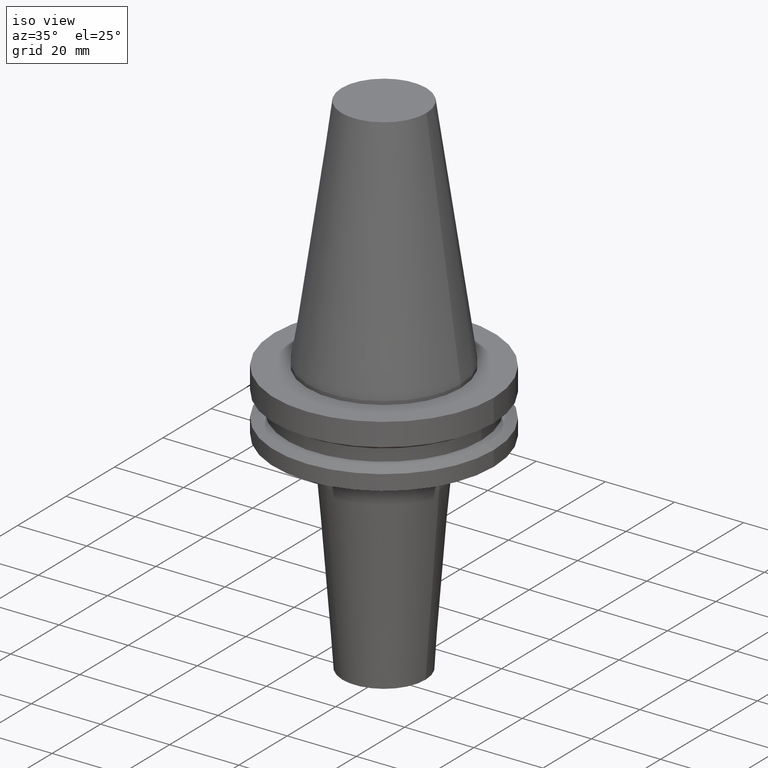
[diagram: clean part render]
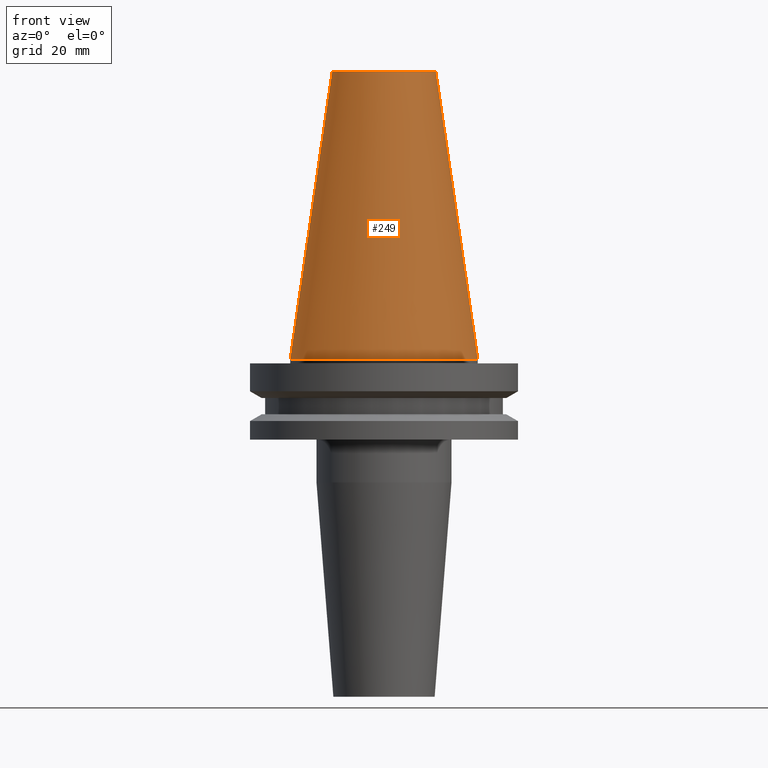
[diagram: tour spotlight — one face highlighted and labeled with its STEP entity id]
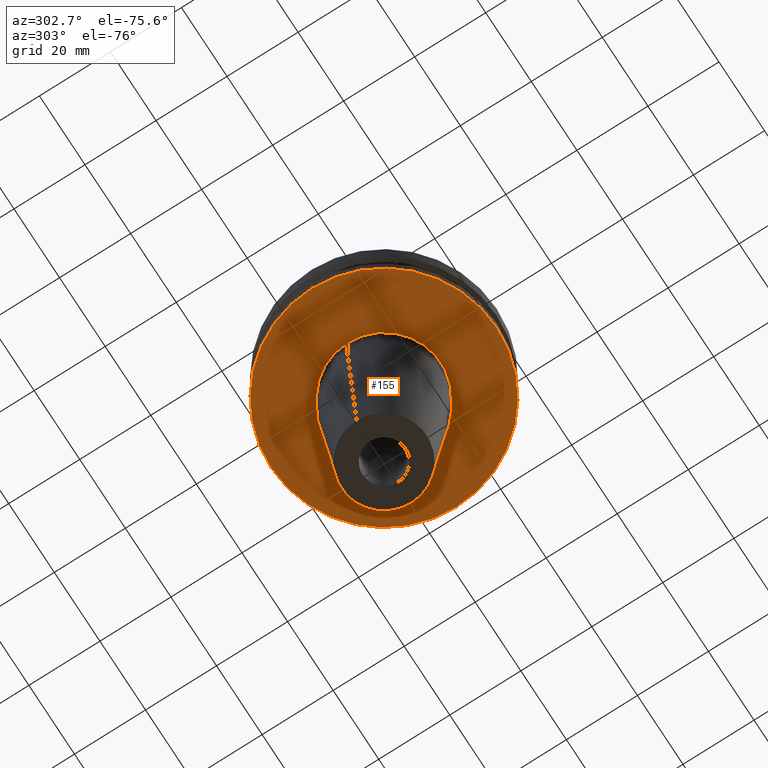
[diagram: tour spotlight — one face highlighted and labeled with its STEP entity id]
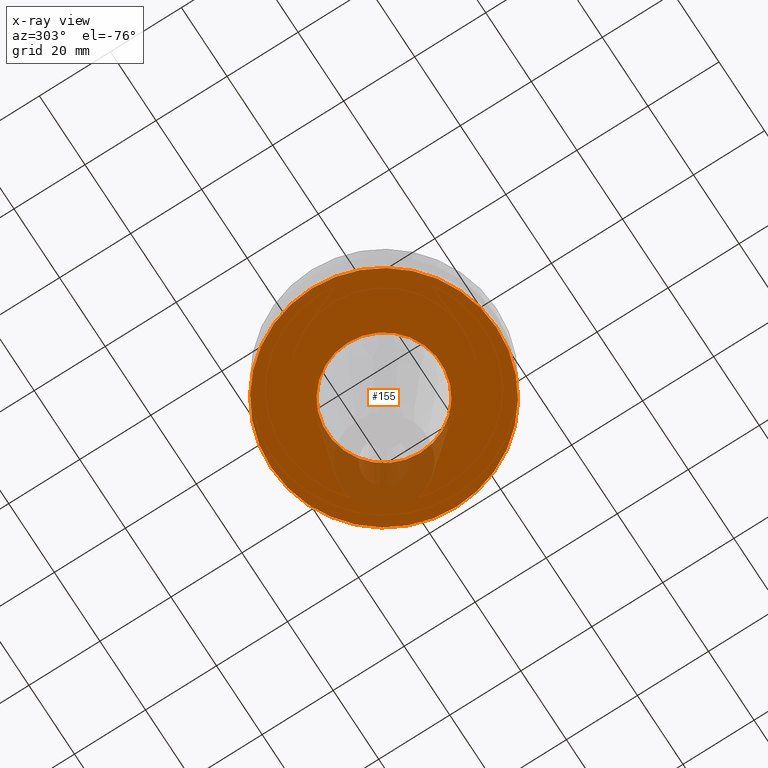
[diagram: x-ray of the same camera — body ghosted, this tour face saturated]
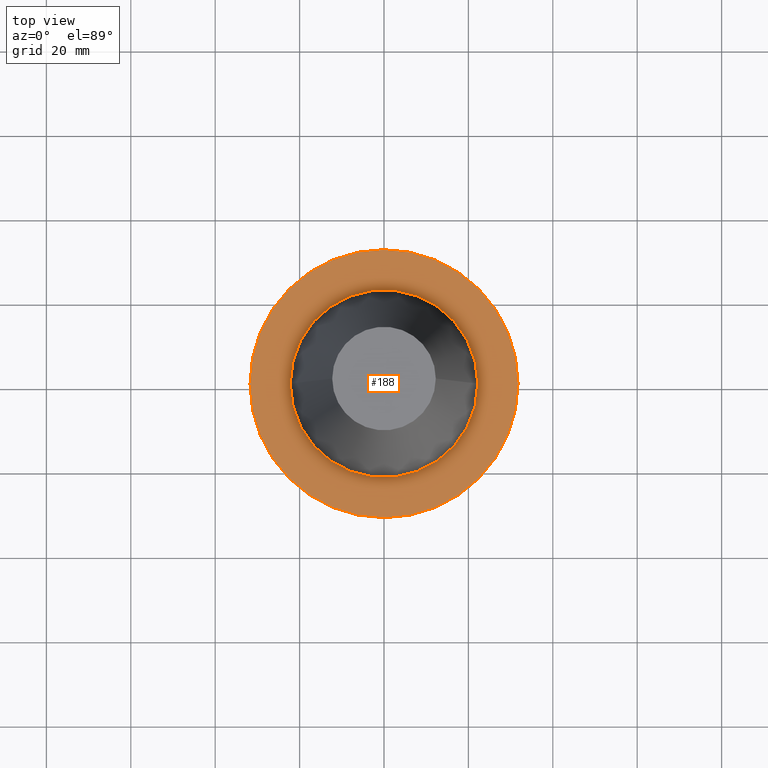
[diagram: tour spotlight — one face highlighted and labeled with its STEP entity id]
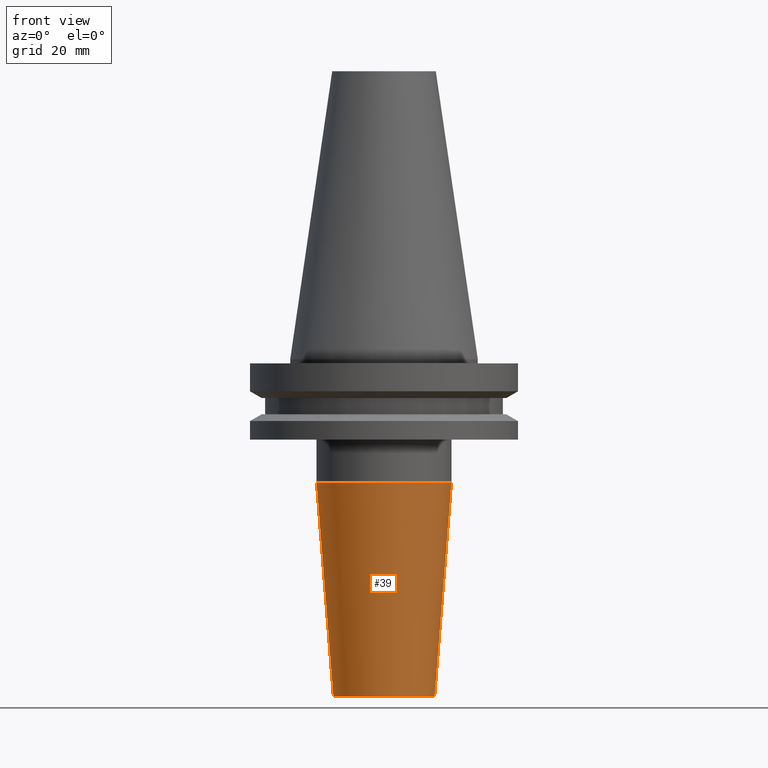
[diagram: tour spotlight — one face highlighted and labeled with its STEP entity id]
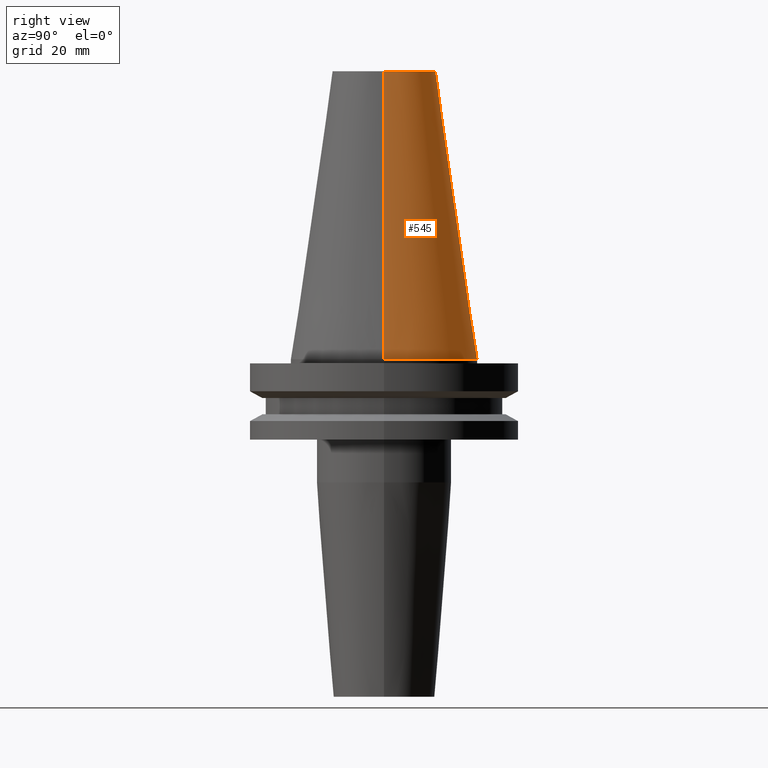
[diagram: tour spotlight — one face highlighted and labeled with its STEP entity id]
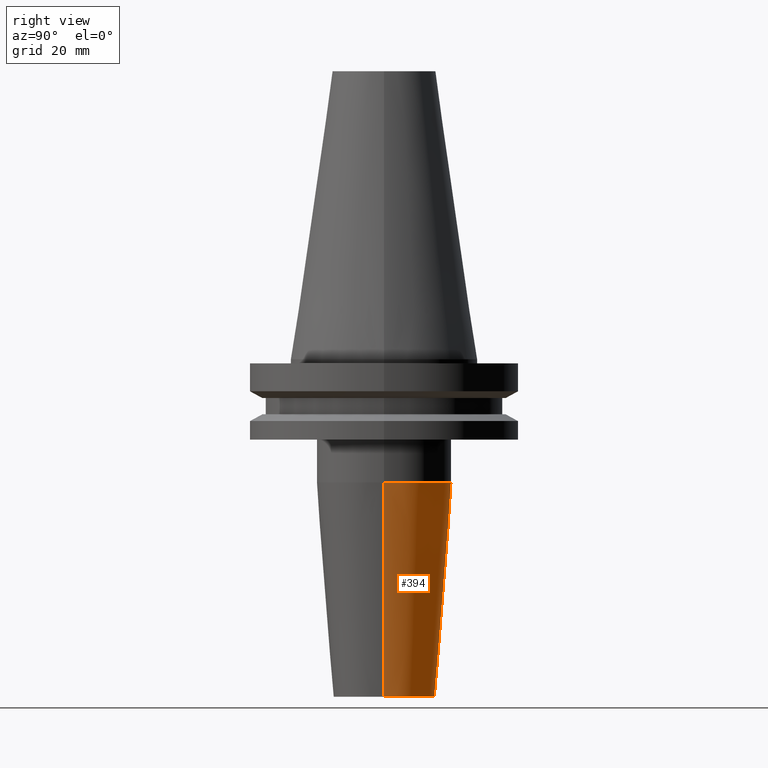
[diagram: tour spotlight — one face highlighted and labeled with its STEP entity id]
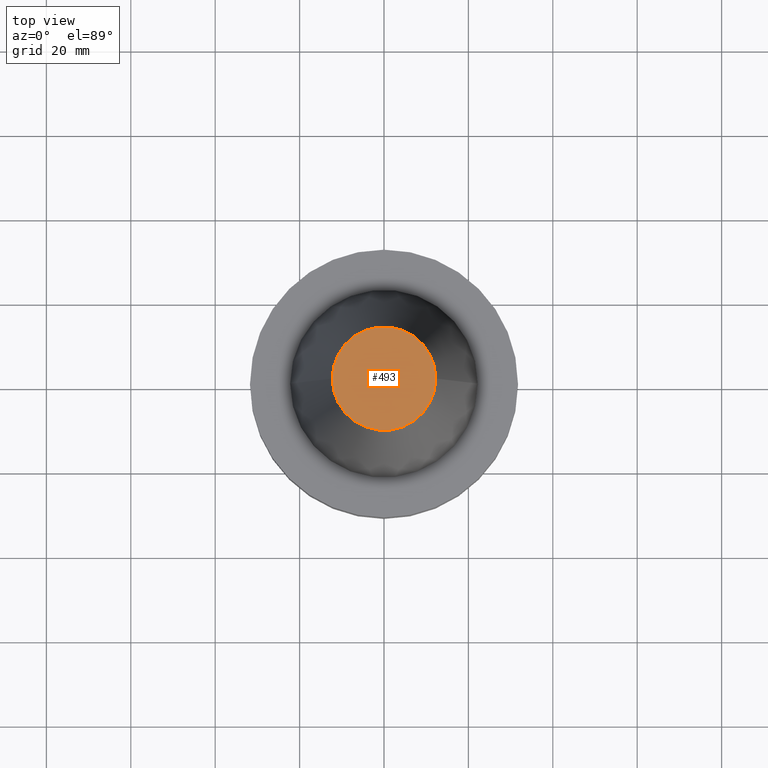
[diagram: tour spotlight — one face highlighted and labeled with its STEP entity id]
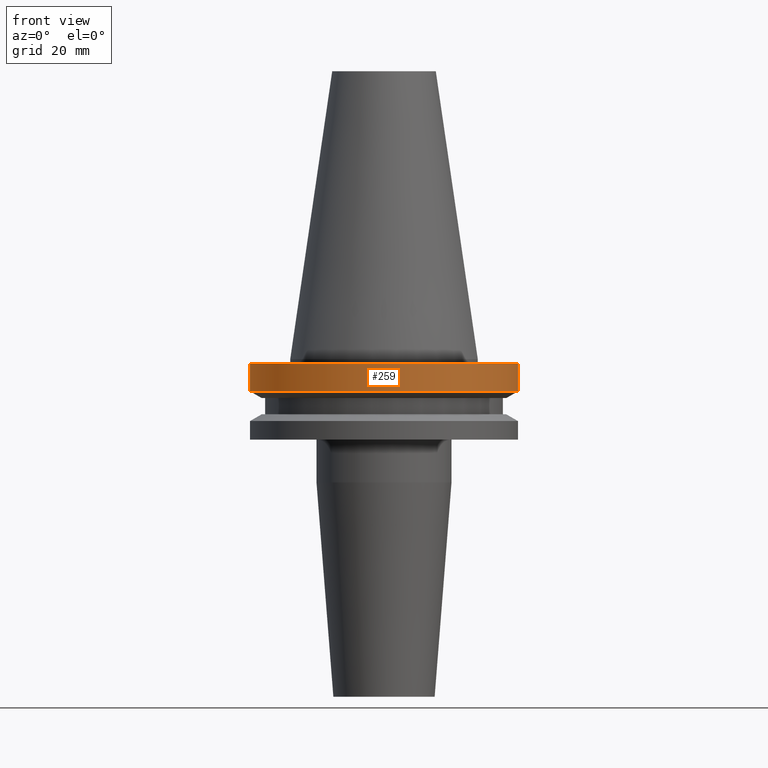
[diagram: tour spotlight — one face highlighted and labeled with its STEP entity id]
A machine part: a face-by-face anatomy tour. The part has 27 B-rep faces; the first image is the clean iso view, then the 8 largest visible faces are spotlighted one at a time (largest first), each with its STEP entity span.

Face 1 — front view, entity #249. In plain terms, the highlighted conical surface has half-angle 8.297 deg.
Definition (entity closure, byte-faithful):
#5 = CARTESIAN_POINT ( 'NONE',  ( -12.27178102086201150, 0.000000000000000000, 68.25000000000000000 ) ) ;
#14 = VERTEX_POINT ( 'NONE', #85 ) ;
#31 = EDGE_LOOP ( 'NONE', ( #127, #89, #602, #324 ) ) ;
#41 = CARTESIAN_POINT ( 'NONE',  ( 0.000000000000000000, 0.000000000000000000, 0.000000000000000000 ) ) ;
#47 = VERTEX_POINT ( 'NONE', #135 ) ;
#49 = CARTESIAN_POINT ( 'NONE',  ( 22.22500000000000142, 2.721777511104992849E-15, 0.000000000000000000 ) ) ;
#75 = CARTESIAN_POINT ( 'NONE',  ( 0.000000000000000000, 0.000000000000000000, 0.000000000000000000 ) ) ;
#83 = EDGE_CURVE ( 'NONE', #47, #725, #314, .T. ) ;
#84 = VECTOR ( 'NONE', #323, 999.9999999999998863 ) ;
#85 = CARTESIAN_POINT ( 'NONE',  ( 12.27178102086201150, 2.112318622904291439E-15, 68.25000000000000000 ) ) ;
#89 = ORIENTED_EDGE ( 'NONE', *, *, #326, .F. ) ;
#94 = EDGE_CURVE ( 'NONE', #311, #47, #617, .T. ) ;
#127 = ORIENTED_EDGE ( 'NONE', *, *, #180, .F. ) ;
#135 = CARTESIAN_POINT ( 'NONE',  ( -22.22500000000000142, 0.000000000000000000, 0.000000000000000000 ) ) ;
#142 = DIRECTION ( 'NONE',  ( 1.000000000000000000, 0.000000000000000000, 0.000000000000000000 ) ) ;
#148 = DIRECTION ( 'NONE',  ( -1.000000000000000000, 0.000000000000000000, 0.000000000000000000 ) ) ;
#149 = CONICAL_SURFACE ( 'NONE', #656, 22.22500000000000142, 0.1448138465474119174 ) ;
#180 = EDGE_CURVE ( 'NONE', #14, #725, #762, .T. ) ;
#213 = FACE_OUTER_BOUND ( 'NONE', #31, .T. ) ;
#249 = ADVANCED_FACE ( 'NONE', ( #213 ), #149, .T. ) ;
#252 = AXIS2_PLACEMENT_3D ( 'NONE', #75, #552, #142 ) ;
#254 = CARTESIAN_POINT ( 'NONE',  ( -22.22500000000000142, 0.000000000000000000, 0.000000000000000000 ) ) ;
#311 = VERTEX_POINT ( 'NONE', #5 ) ;
#314 = CIRCLE ( 'NONE', #252, 22.22500000000000142 ) ;
#323 = DIRECTION ( 'NONE',  ( 0.1443082272672999711, 1.767266086135276757E-17, -0.9895327864921755756 ) ) ;
#324 = ORIENTED_EDGE ( 'NONE', *, *, #83, .T. ) ;
#326 = EDGE_CURVE ( 'NONE', #311, #14, #440, .T. ) ;
#435 = CARTESIAN_POINT ( 'NONE',  ( 22.22500000000000142, 2.721777511104992849E-15, 0.000000000000000000 ) ) ;
#440 = CIRCLE ( 'NONE', #738, 12.27178102086201150 ) ;
#464 = DIRECTION ( 'NONE',  ( 0.000000000000000000, 0.000000000000000000, -1.000000000000000000 ) ) ;
#536 = VECTOR ( 'NONE', #559, 999.9999999999998863 ) ;
#552 = DIRECTION ( 'NONE',  ( -0.000000000000000000, -0.000000000000000000, 1.000000000000000000 ) ) ;
#559 = DIRECTION ( 'NONE',  ( -0.1443082272672999711, 0.000000000000000000, -0.9895327864921755756 ) ) ;
#602 = ORIENTED_EDGE ( 'NONE', *, *, #94, .T. ) ;
#617 = LINE ( 'NONE', #254, #536 ) ;
#656 = AXIS2_PLACEMENT_3D ( 'NONE', #41, #464, #148 ) ;
#662 = DIRECTION ( 'NONE',  ( 1.000000000000000000, 0.000000000000000000, 0.000000000000000000 ) ) ;
#717 = DIRECTION ( 'NONE',  ( -0.000000000000000000, -0.000000000000000000, 1.000000000000000000 ) ) ;
#721 = CARTESIAN_POINT ( 'NONE',  ( 0.000000000000000000, 0.000000000000000000, 68.25000000000000000 ) ) ;
#725 = VERTEX_POINT ( 'NONE', #435 ) ;
#738 = AXIS2_PLACEMENT_3D ( 'NONE', #721, #717, #662 ) ;
#762 = LINE ( 'NONE', #49, #84 ) ;

Face 2 — auxiliary view, entity #155. An x-ray twin of the same camera follows (body ghosted, this face saturated) — the face is partly hidden behind the body. In plain terms, the highlighted planar face has unit normal (0, -0, 1).
Definition (entity closure, byte-faithful):
#15 = CIRCLE ( 'NONE', #419, 15.99999999999999289 ) ;
#20 = DIRECTION ( 'NONE',  ( -0.000000000000000000, -0.000000000000000000, 1.000000000000000000 ) ) ;
#22 = AXIS2_PLACEMENT_3D ( 'NONE', #87, #32, #459 ) ;
#32 = DIRECTION ( 'NONE',  ( -0.000000000000000000, -0.000000000000000000, 1.000000000000000000 ) ) ;
#42 = VERTEX_POINT ( 'NONE', #503 ) ;
#87 = CARTESIAN_POINT ( 'NONE',  ( 0.000000000000000000, 0.000000000000000000, -19.04999999999999716 ) ) ;
#100 = CARTESIAN_POINT ( 'NONE',  ( 0.000000000000000000, 0.000000000000000000, -19.04999999999999716 ) ) ;
#107 = CARTESIAN_POINT ( 'NONE',  ( 0.000000000000000000, 0.000000000000000000, -19.04999999999999716 ) ) ;
#117 = DIRECTION ( 'NONE',  ( 1.000000000000000000, 0.000000000000000000, 0.000000000000000000 ) ) ;
#123 = VERTEX_POINT ( 'NONE', #632 ) ;
#129 = CIRCLE ( 'NONE', #567, 31.74999999999999289 ) ;
#155 = ADVANCED_FACE ( 'NONE', ( #274, #471 ), #336, .F. ) ;
#156 = DIRECTION ( 'NONE',  ( -0.000000000000000000, -0.000000000000000000, 1.000000000000000000 ) ) ;
#200 = VERTEX_POINT ( 'NONE', #584 ) ;
#212 = CARTESIAN_POINT ( 'NONE',  ( 0.000000000000000000, 0.000000000000000000, -19.04999999999999716 ) ) ;
#255 = ORIENTED_EDGE ( 'NONE', *, *, #644, .T. ) ;
#256 = DIRECTION ( 'NONE',  ( 1.000000000000000000, 0.000000000000000000, 0.000000000000000000 ) ) ;
#274 = FACE_BOUND ( 'NONE', #619, .T. ) ;
#291 = ORIENTED_EDGE ( 'NONE', *, *, #479, .T. ) ;
#329 = CARTESIAN_POINT ( 'NONE',  ( 0.000000000000000000, 31.74999999999999289, -19.04999999999999716 ) ) ;
#336 = PLANE ( 'NONE',  #397 ) ;
#397 = AXIS2_PLACEMENT_3D ( 'NONE', #329, #402, #581 ) ;
#402 = DIRECTION ( 'NONE',  ( 0.000000000000000000, -0.000000000000000000, 1.000000000000000000 ) ) ;
#408 = DIRECTION ( 'NONE',  ( -0.000000000000000000, -0.000000000000000000, 1.000000000000000000 ) ) ;
#419 = AXIS2_PLACEMENT_3D ( 'NONE', #107, #156, #117 ) ;
#424 = EDGE_CURVE ( 'NONE', #200, #42, #129, .T. ) ;
#459 = DIRECTION ( 'NONE',  ( 1.000000000000000000, 0.000000000000000000, 0.000000000000000000 ) ) ;
#471 = FACE_OUTER_BOUND ( 'NONE', #658, .T. ) ;
#474 = CIRCLE ( 'NONE', #669, 31.74999999999999289 ) ;
#479 = EDGE_CURVE ( 'NONE', #585, #123, #687, .T. ) ;
#503 = CARTESIAN_POINT ( 'NONE',  ( 31.74999999999999289, 0.000000000000000000, -19.04999999999999716 ) ) ;
#506 = ORIENTED_EDGE ( 'NONE', *, *, #660, .F. ) ;
#567 = AXIS2_PLACEMENT_3D ( 'NONE', #100, #20, #256 ) ;
#573 = ORIENTED_EDGE ( 'NONE', *, *, #424, .F. ) ;
#581 = DIRECTION ( 'NONE',  ( 1.000000000000000000, 0.000000000000000000, 0.000000000000000000 ) ) ;
#584 = CARTESIAN_POINT ( 'NONE',  ( -31.74999999999999289, 3.888253587292845687E-15, -19.04999999999999716 ) ) ;
#585 = VERTEX_POINT ( 'NONE', #591 ) ;
#591 = CARTESIAN_POINT ( 'NONE',  ( 15.99999999999999289, 0.000000000000000000, -19.04999999999999716 ) ) ;
#619 = EDGE_LOOP ( 'NONE', ( #291, #255 ) ) ;
#632 = CARTESIAN_POINT ( 'NONE',  ( -15.99999999999999289, 1.959434878635764343E-15, -19.04999999999999716 ) ) ;
#640 = DIRECTION ( 'NONE',  ( 1.000000000000000000, 0.000000000000000000, 0.000000000000000000 ) ) ;
#644 = EDGE_CURVE ( 'NONE', #123, #585, #15, .T. ) ;
#658 = EDGE_LOOP ( 'NONE', ( #506, #573 ) ) ;
#660 = EDGE_CURVE ( 'NONE', #42, #200, #474, .T. ) ;
#669 = AXIS2_PLACEMENT_3D ( 'NONE', #212, #408, #640 ) ;
#687 = CIRCLE ( 'NONE', #22, 15.99999999999999289 ) ;

Face 3 — top view, entity #188. In plain terms, the highlighted planar face has unit normal (0, 0, -1).
Definition (entity closure, byte-faithful):
#34 = ORIENTED_EDGE ( 'NONE', *, *, #589, .F. ) ;
#36 = DIRECTION ( 'NONE',  ( -0.000000000000000000, -0.000000000000000000, 1.000000000000000000 ) ) ;
#46 = PLANE ( 'NONE',  #661 ) ;
#54 = VERTEX_POINT ( 'NONE', #451 ) ;
#56 = CARTESIAN_POINT ( 'NONE',  ( -31.75000000000000000, 3.888253587292846476E-15, -1.000000000000000888 ) ) ;
#58 = DIRECTION ( 'NONE',  ( 1.000000000000000000, 0.000000000000000000, 0.000000000000000000 ) ) ;
#61 = CIRCLE ( 'NONE', #92, 31.75000000000000000 ) ;
#66 = CARTESIAN_POINT ( 'NONE',  ( -22.22500000000000142, 2.721777511104992849E-15, -1.000000000000000888 ) ) ;
#92 = AXIS2_PLACEMENT_3D ( 'NONE', #266, #36, #260 ) ;
#108 = CARTESIAN_POINT ( 'NONE',  ( 31.75000000000000000, 0.000000000000000000, -1.000000000000000888 ) ) ;
#139 = VERTEX_POINT ( 'NONE', #108 ) ;
#158 = EDGE_LOOP ( 'NONE', ( #750, #703 ) ) ;
#168 = EDGE_CURVE ( 'NONE', #54, #728, #764, .T. ) ;
#170 = DIRECTION ( 'NONE',  ( -0.000000000000000000, -0.000000000000000000, 1.000000000000000000 ) ) ;
#179 = AXIS2_PLACEMENT_3D ( 'NONE', #217, #641, #758 ) ;
#187 = VERTEX_POINT ( 'NONE', #56 ) ;
#188 = ADVANCED_FACE ( 'NONE', ( #209, #271 ), #46, .F. ) ;
#206 = DIRECTION ( 'NONE',  ( -0.000000000000000000, -0.000000000000000000, 1.000000000000000000 ) ) ;
#209 = FACE_BOUND ( 'NONE', #364, .T. ) ;
#217 = CARTESIAN_POINT ( 'NONE',  ( 0.000000000000000000, 0.000000000000000000, -1.000000000000000888 ) ) ;
#239 = EDGE_CURVE ( 'NONE', #187, #139, #376, .T. ) ;
#260 = DIRECTION ( 'NONE',  ( 1.000000000000000000, 0.000000000000000000, 0.000000000000000000 ) ) ;
#266 = CARTESIAN_POINT ( 'NONE',  ( 0.000000000000000000, 0.000000000000000000, -1.000000000000000888 ) ) ;
#271 = FACE_OUTER_BOUND ( 'NONE', #158, .T. ) ;
#359 = ORIENTED_EDGE ( 'NONE', *, *, #168, .F. ) ;
#364 = EDGE_LOOP ( 'NONE', ( #359, #34 ) ) ;
#376 = CIRCLE ( 'NONE', #475, 31.75000000000000000 ) ;
#398 = DIRECTION ( 'NONE',  ( 1.000000000000000000, 0.000000000000000000, 0.000000000000000000 ) ) ;
#451 = CARTESIAN_POINT ( 'NONE',  ( 22.22500000000000142, 0.000000000000000000, -1.000000000000000888 ) ) ;
#466 = CARTESIAN_POINT ( 'NONE',  ( 0.000000000000000000, 0.000000000000000000, -1.000000000000000888 ) ) ;
#475 = AXIS2_PLACEMENT_3D ( 'NONE', #645, #206, #398 ) ;
#512 = CARTESIAN_POINT ( 'NONE',  ( 0.000000000000000000, 31.75000000000000000, -0.9999999999999995559 ) ) ;
#555 = EDGE_CURVE ( 'NONE', #139, #187, #61, .T. ) ;
#587 = DIRECTION ( 'NONE',  ( 0.000000000000000000, 0.000000000000000000, -1.000000000000000000 ) ) ;
#589 = EDGE_CURVE ( 'NONE', #728, #54, #739, .T. ) ;
#641 = DIRECTION ( 'NONE',  ( -0.000000000000000000, -0.000000000000000000, 1.000000000000000000 ) ) ;
#645 = CARTESIAN_POINT ( 'NONE',  ( 0.000000000000000000, 0.000000000000000000, -1.000000000000000888 ) ) ;
#661 = AXIS2_PLACEMENT_3D ( 'NONE', #512, #587, #706 ) ;
#703 = ORIENTED_EDGE ( 'NONE', *, *, #239, .T. ) ;
#706 = DIRECTION ( 'NONE',  ( -1.000000000000000000, 0.000000000000000000, -0.000000000000000000 ) ) ;
#715 = AXIS2_PLACEMENT_3D ( 'NONE', #466, #170, #58 ) ;
#728 = VERTEX_POINT ( 'NONE', #66 ) ;
#739 = CIRCLE ( 'NONE', #715, 22.22500000000000142 ) ;
#750 = ORIENTED_EDGE ( 'NONE', *, *, #555, .T. ) ;
#758 = DIRECTION ( 'NONE',  ( 1.000000000000000000, 0.000000000000000000, 0.000000000000000000 ) ) ;
#764 = CIRCLE ( 'NONE', #179, 22.22500000000000142 ) ;

Face 4 — front view, entity #39. In plain terms, the highlighted conical surface has half-angle 4.5 deg.
Definition (entity closure, byte-faithful):
#10 = VERTEX_POINT ( 'NONE', #78 ) ;
#27 = CARTESIAN_POINT ( 'NONE',  ( 0.000000000000000000, 0.000000000000000000, -80.00000000000000000 ) ) ;
#39 = ADVANCED_FACE ( 'NONE', ( #674 ), #257, .T. ) ;
#52 = LINE ( 'NONE', #524, #214 ) ;
#65 = ORIENTED_EDGE ( 'NONE', *, *, #366, .T. ) ;
#78 = CARTESIAN_POINT ( 'NONE',  ( 15.99999999999999289, 0.000000000000000000, -29.17518105529640948 ) ) ;
#93 = CARTESIAN_POINT ( 'NONE',  ( -15.99999999999999289, 1.959434878635764343E-15, -29.17518105529640948 ) ) ;
#97 = DIRECTION ( 'NONE',  ( -0.07845909572783764385, 9.608468044709212160E-18, 0.9969173337331286300 ) ) ;
#121 = CARTESIAN_POINT ( 'NONE',  ( 0.000000000000000000, 0.000000000000000000, -80.00000000000000000 ) ) ;
#150 = VERTEX_POINT ( 'NONE', #702 ) ;
#184 = EDGE_CURVE ( 'NONE', #150, #279, #52, .T. ) ;
#211 = EDGE_LOOP ( 'NONE', ( #699, #318, #65, #481 ) ) ;
#214 = VECTOR ( 'NONE', #97, 999.9999999999998863 ) ;
#226 = DIRECTION ( 'NONE',  ( 0.07845909572783764385, 0.000000000000000000, 0.9969173337331286300 ) ) ;
#232 = DIRECTION ( 'NONE',  ( 1.000000000000000000, 0.000000000000000000, 0.000000000000000000 ) ) ;
#240 = DIRECTION ( 'NONE',  ( 1.000000000000000000, 0.000000000000000000, 0.000000000000000000 ) ) ;
#257 = CONICAL_SURFACE ( 'NONE', #361, 11.99999999999999289, 0.07853981633973751431 ) ;
#279 = VERTEX_POINT ( 'NONE', #93 ) ;
#287 = VERTEX_POINT ( 'NONE', #724 ) ;
#289 = DIRECTION ( 'NONE',  ( -0.000000000000000000, -0.000000000000000000, 1.000000000000000000 ) ) ;
#304 = EDGE_CURVE ( 'NONE', #279, #10, #760, .T. ) ;
#318 = ORIENTED_EDGE ( 'NONE', *, *, #753, .T. ) ;
#357 = AXIS2_PLACEMENT_3D ( 'NONE', #541, #773, #232 ) ;
#361 = AXIS2_PLACEMENT_3D ( 'NONE', #27, #679, #367 ) ;
#366 = EDGE_CURVE ( 'NONE', #287, #10, #533, .T. ) ;
#367 = DIRECTION ( 'NONE',  ( 1.000000000000000000, 0.000000000000000000, 0.000000000000000000 ) ) ;
#382 = CIRCLE ( 'NONE', #712, 11.99999999999999289 ) ;
#458 = VECTOR ( 'NONE', #226, 999.9999999999998863 ) ;
#481 = ORIENTED_EDGE ( 'NONE', *, *, #304, .F. ) ;
#524 = CARTESIAN_POINT ( 'NONE',  ( -11.99999999999999289, 1.469576158976823158E-15, -80.00000000000000000 ) ) ;
#533 = LINE ( 'NONE', #592, #458 ) ;
#541 = CARTESIAN_POINT ( 'NONE',  ( 0.000000000000000000, 0.000000000000000000, -29.17518105529640948 ) ) ;
#592 = CARTESIAN_POINT ( 'NONE',  ( 11.99999999999999289, 0.000000000000000000, -80.00000000000000000 ) ) ;
#674 = FACE_OUTER_BOUND ( 'NONE', #211, .T. ) ;
#679 = DIRECTION ( 'NONE',  ( -0.000000000000000000, -0.000000000000000000, 1.000000000000000000 ) ) ;
#699 = ORIENTED_EDGE ( 'NONE', *, *, #184, .F. ) ;
#702 = CARTESIAN_POINT ( 'NONE',  ( -11.99999999999999289, 1.714505518806293849E-15, -80.00000000000000000 ) ) ;
#712 = AXIS2_PLACEMENT_3D ( 'NONE', #121, #289, #240 ) ;
#724 = CARTESIAN_POINT ( 'NONE',  ( 11.99999999999999289, 0.000000000000000000, -80.00000000000000000 ) ) ;
#753 = EDGE_CURVE ( 'NONE', #150, #287, #382, .T. ) ;
#760 = CIRCLE ( 'NONE', #357, 15.99999999999999289 ) ;
#773 = DIRECTION ( 'NONE',  ( -0.000000000000000000, -0.000000000000000000, 1.000000000000000000 ) ) ;

Face 5 — right view, entity #545. In plain terms, the highlighted conical surface has half-angle 8.297 deg.
Definition (entity closure, byte-faithful):
#5 = CARTESIAN_POINT ( 'NONE',  ( -12.27178102086201150, 0.000000000000000000, 68.25000000000000000 ) ) ;
#14 = VERTEX_POINT ( 'NONE', #85 ) ;
#47 = VERTEX_POINT ( 'NONE', #135 ) ;
#49 = CARTESIAN_POINT ( 'NONE',  ( 22.22500000000000142, 2.721777511104992849E-15, 0.000000000000000000 ) ) ;
#84 = VECTOR ( 'NONE', #323, 999.9999999999998863 ) ;
#85 = CARTESIAN_POINT ( 'NONE',  ( 12.27178102086201150, 2.112318622904291439E-15, 68.25000000000000000 ) ) ;
#94 = EDGE_CURVE ( 'NONE', #311, #47, #617, .T. ) ;
#135 = CARTESIAN_POINT ( 'NONE',  ( -22.22500000000000142, 0.000000000000000000, 0.000000000000000000 ) ) ;
#141 = DIRECTION ( 'NONE',  ( -1.000000000000000000, 0.000000000000000000, 0.000000000000000000 ) ) ;
#173 = EDGE_LOOP ( 'NONE', ( #472, #521, #437, #696 ) ) ;
#180 = EDGE_CURVE ( 'NONE', #14, #725, #762, .T. ) ;
#225 = DIRECTION ( 'NONE',  ( -0.000000000000000000, -0.000000000000000000, 1.000000000000000000 ) ) ;
#228 = CARTESIAN_POINT ( 'NONE',  ( 0.000000000000000000, 0.000000000000000000, 0.000000000000000000 ) ) ;
#254 = CARTESIAN_POINT ( 'NONE',  ( -22.22500000000000142, 0.000000000000000000, 0.000000000000000000 ) ) ;
#311 = VERTEX_POINT ( 'NONE', #5 ) ;
#323 = DIRECTION ( 'NONE',  ( 0.1443082272672999711, 1.767266086135276757E-17, -0.9895327864921755756 ) ) ;
#331 = CARTESIAN_POINT ( 'NONE',  ( 0.000000000000000000, 0.000000000000000000, 68.25000000000000000 ) ) ;
#343 = CIRCLE ( 'NONE', #616, 22.22500000000000142 ) ;
#404 = DIRECTION ( 'NONE',  ( -0.000000000000000000, -0.000000000000000000, 1.000000000000000000 ) ) ;
#435 = CARTESIAN_POINT ( 'NONE',  ( 22.22500000000000142, 2.721777511104992849E-15, 0.000000000000000000 ) ) ;
#437 = ORIENTED_EDGE ( 'NONE', *, *, #580, .T. ) ;
#446 = CIRCLE ( 'NONE', #744, 12.27178102086201150 ) ;
#472 = ORIENTED_EDGE ( 'NONE', *, *, #635, .F. ) ;
#482 = DIRECTION ( 'NONE',  ( 1.000000000000000000, 0.000000000000000000, 0.000000000000000000 ) ) ;
#507 = CONICAL_SURFACE ( 'NONE', #532, 22.22500000000000142, 0.1448138465474119174 ) ;
#519 = DIRECTION ( 'NONE',  ( 1.000000000000000000, 0.000000000000000000, 0.000000000000000000 ) ) ;
#521 = ORIENTED_EDGE ( 'NONE', *, *, #180, .T. ) ;
#532 = AXIS2_PLACEMENT_3D ( 'NONE', #636, #568, #141 ) ;
#536 = VECTOR ( 'NONE', #559, 999.9999999999998863 ) ;
#545 = ADVANCED_FACE ( 'NONE', ( #681 ), #507, .T. ) ;
#559 = DIRECTION ( 'NONE',  ( -0.1443082272672999711, 0.000000000000000000, -0.9895327864921755756 ) ) ;
#568 = DIRECTION ( 'NONE',  ( 0.000000000000000000, 0.000000000000000000, -1.000000000000000000 ) ) ;
#580 = EDGE_CURVE ( 'NONE', #725, #47, #343, .T. ) ;
#616 = AXIS2_PLACEMENT_3D ( 'NONE', #228, #404, #482 ) ;
#617 = LINE ( 'NONE', #254, #536 ) ;
#635 = EDGE_CURVE ( 'NONE', #14, #311, #446, .T. ) ;
#636 = CARTESIAN_POINT ( 'NONE',  ( 0.000000000000000000, 0.000000000000000000, 0.000000000000000000 ) ) ;
#681 = FACE_OUTER_BOUND ( 'NONE', #173, .T. ) ;
#696 = ORIENTED_EDGE ( 'NONE', *, *, #94, .F. ) ;
#725 = VERTEX_POINT ( 'NONE', #435 ) ;
#744 = AXIS2_PLACEMENT_3D ( 'NONE', #331, #225, #519 ) ;
#762 = LINE ( 'NONE', #49, #84 ) ;

Face 6 — right view, entity #394. In plain terms, the highlighted conical surface has half-angle 4.5 deg.
Definition (entity closure, byte-faithful):
#10 = VERTEX_POINT ( 'NONE', #78 ) ;
#52 = LINE ( 'NONE', #524, #214 ) ;
#78 = CARTESIAN_POINT ( 'NONE',  ( 15.99999999999999289, 0.000000000000000000, -29.17518105529640948 ) ) ;
#93 = CARTESIAN_POINT ( 'NONE',  ( -15.99999999999999289, 1.959434878635764343E-15, -29.17518105529640948 ) ) ;
#97 = DIRECTION ( 'NONE',  ( -0.07845909572783764385, 9.608468044709212160E-18, 0.9969173337331286300 ) ) ;
#102 = EDGE_LOOP ( 'NONE', ( #642, #763, #330, #745 ) ) ;
#122 = DIRECTION ( 'NONE',  ( -0.000000000000000000, -0.000000000000000000, 1.000000000000000000 ) ) ;
#150 = VERTEX_POINT ( 'NONE', #702 ) ;
#167 = FACE_OUTER_BOUND ( 'NONE', #102, .T. ) ;
#178 = CIRCLE ( 'NONE', #684, 11.99999999999999289 ) ;
#184 = EDGE_CURVE ( 'NONE', #150, #279, #52, .T. ) ;
#214 = VECTOR ( 'NONE', #97, 999.9999999999998863 ) ;
#219 = AXIS2_PLACEMENT_3D ( 'NONE', #416, #657, #515 ) ;
#222 = EDGE_CURVE ( 'NONE', #287, #150, #178, .T. ) ;
#226 = DIRECTION ( 'NONE',  ( 0.07845909572783764385, 0.000000000000000000, 0.9969173337331286300 ) ) ;
#237 = DIRECTION ( 'NONE',  ( 1.000000000000000000, 0.000000000000000000, 0.000000000000000000 ) ) ;
#279 = VERTEX_POINT ( 'NONE', #93 ) ;
#287 = VERTEX_POINT ( 'NONE', #724 ) ;
#293 = EDGE_CURVE ( 'NONE', #10, #279, #557, .T. ) ;
#309 = AXIS2_PLACEMENT_3D ( 'NONE', #420, #122, #237 ) ;
#330 = ORIENTED_EDGE ( 'NONE', *, *, #293, .F. ) ;
#366 = EDGE_CURVE ( 'NONE', #287, #10, #533, .T. ) ;
#394 = ADVANCED_FACE ( 'NONE', ( #167 ), #460, .T. ) ;
#406 = DIRECTION ( 'NONE',  ( 1.000000000000000000, 0.000000000000000000, 0.000000000000000000 ) ) ;
#416 = CARTESIAN_POINT ( 'NONE',  ( 0.000000000000000000, 0.000000000000000000, -80.00000000000000000 ) ) ;
#420 = CARTESIAN_POINT ( 'NONE',  ( 0.000000000000000000, 0.000000000000000000, -29.17518105529640948 ) ) ;
#458 = VECTOR ( 'NONE', #226, 999.9999999999998863 ) ;
#460 = CONICAL_SURFACE ( 'NONE', #219, 11.99999999999999289, 0.07853981633973751431 ) ;
#515 = DIRECTION ( 'NONE',  ( 1.000000000000000000, 0.000000000000000000, 0.000000000000000000 ) ) ;
#524 = CARTESIAN_POINT ( 'NONE',  ( -11.99999999999999289, 1.469576158976823158E-15, -80.00000000000000000 ) ) ;
#533 = LINE ( 'NONE', #592, #458 ) ;
#557 = CIRCLE ( 'NONE', #309, 15.99999999999999289 ) ;
#592 = CARTESIAN_POINT ( 'NONE',  ( 11.99999999999999289, 0.000000000000000000, -80.00000000000000000 ) ) ;
#642 = ORIENTED_EDGE ( 'NONE', *, *, #222, .T. ) ;
#657 = DIRECTION ( 'NONE',  ( -0.000000000000000000, -0.000000000000000000, 1.000000000000000000 ) ) ;
#684 = AXIS2_PLACEMENT_3D ( 'NONE', #694, #768, #406 ) ;
#694 = CARTESIAN_POINT ( 'NONE',  ( 0.000000000000000000, 0.000000000000000000, -80.00000000000000000 ) ) ;
#702 = CARTESIAN_POINT ( 'NONE',  ( -11.99999999999999289, 1.714505518806293849E-15, -80.00000000000000000 ) ) ;
#724 = CARTESIAN_POINT ( 'NONE',  ( 11.99999999999999289, 0.000000000000000000, -80.00000000000000000 ) ) ;
#745 = ORIENTED_EDGE ( 'NONE', *, *, #366, .F. ) ;
#763 = ORIENTED_EDGE ( 'NONE', *, *, #184, .T. ) ;
#768 = DIRECTION ( 'NONE',  ( -0.000000000000000000, -0.000000000000000000, 1.000000000000000000 ) ) ;

Face 7 — top view, entity #493. In plain terms, the highlighted planar face has unit normal (0, 0, -1).
Definition (entity closure, byte-faithful):
#5 = CARTESIAN_POINT ( 'NONE',  ( -12.27178102086201150, 0.000000000000000000, 68.25000000000000000 ) ) ;
#14 = VERTEX_POINT ( 'NONE', #85 ) ;
#85 = CARTESIAN_POINT ( 'NONE',  ( 12.27178102086201150, 2.112318622904291439E-15, 68.25000000000000000 ) ) ;
#126 = AXIS2_PLACEMENT_3D ( 'NONE', #186, #752, #575 ) ;
#186 = CARTESIAN_POINT ( 'NONE',  ( 0.000000000000000000, 12.27178102086201150, 68.25000000000000000 ) ) ;
#215 = EDGE_LOOP ( 'NONE', ( #534, #707 ) ) ;
#225 = DIRECTION ( 'NONE',  ( -0.000000000000000000, -0.000000000000000000, 1.000000000000000000 ) ) ;
#262 = PLANE ( 'NONE',  #126 ) ;
#311 = VERTEX_POINT ( 'NONE', #5 ) ;
#326 = EDGE_CURVE ( 'NONE', #311, #14, #440, .T. ) ;
#331 = CARTESIAN_POINT ( 'NONE',  ( 0.000000000000000000, 0.000000000000000000, 68.25000000000000000 ) ) ;
#365 = FACE_OUTER_BOUND ( 'NONE', #215, .T. ) ;
#440 = CIRCLE ( 'NONE', #738, 12.27178102086201150 ) ;
#446 = CIRCLE ( 'NONE', #744, 12.27178102086201150 ) ;
#493 = ADVANCED_FACE ( 'NONE', ( #365 ), #262, .F. ) ;
#519 = DIRECTION ( 'NONE',  ( 1.000000000000000000, 0.000000000000000000, 0.000000000000000000 ) ) ;
#534 = ORIENTED_EDGE ( 'NONE', *, *, #326, .T. ) ;
#575 = DIRECTION ( 'NONE',  ( -1.000000000000000000, 0.000000000000000000, -0.000000000000000000 ) ) ;
#635 = EDGE_CURVE ( 'NONE', #14, #311, #446, .T. ) ;
#662 = DIRECTION ( 'NONE',  ( 1.000000000000000000, 0.000000000000000000, 0.000000000000000000 ) ) ;
#707 = ORIENTED_EDGE ( 'NONE', *, *, #635, .T. ) ;
#717 = DIRECTION ( 'NONE',  ( -0.000000000000000000, -0.000000000000000000, 1.000000000000000000 ) ) ;
#721 = CARTESIAN_POINT ( 'NONE',  ( 0.000000000000000000, 0.000000000000000000, 68.25000000000000000 ) ) ;
#738 = AXIS2_PLACEMENT_3D ( 'NONE', #721, #717, #662 ) ;
#744 = AXIS2_PLACEMENT_3D ( 'NONE', #331, #225, #519 ) ;
#752 = DIRECTION ( 'NONE',  ( 0.000000000000000000, 0.000000000000000000, -1.000000000000000000 ) ) ;

Face 8 — front view, entity #259. In plain terms, the highlighted cylindrical surface (partial cylindrical patch) has radius 31.75 mm, axis along (-0, -0, 1).
Definition (entity closure, byte-faithful):
#56 = CARTESIAN_POINT ( 'NONE',  ( -31.75000000000000000, 3.888253587292846476E-15, -1.000000000000000888 ) ) ;
#105 = CARTESIAN_POINT ( 'NONE',  ( 0.000000000000000000, 0.000000000000000000, 68.25000000000000000 ) ) ;
#108 = CARTESIAN_POINT ( 'NONE',  ( 31.75000000000000000, 0.000000000000000000, -1.000000000000000888 ) ) ;
#113 = CARTESIAN_POINT ( 'NONE',  ( 31.75000000000000000, 0.000000000000000000, -7.605276606597335842 ) ) ;
#120 = EDGE_CURVE ( 'NONE', #395, #187, #389, .T. ) ;
#124 = DIRECTION ( 'NONE',  ( -0.000000000000000000, -0.000000000000000000, 1.000000000000000000 ) ) ;
#139 = VERTEX_POINT ( 'NONE', #108 ) ;
#162 = DIRECTION ( 'NONE',  ( -0.000000000000000000, -0.000000000000000000, 1.000000000000000000 ) ) ;
#165 = ORIENTED_EDGE ( 'NONE', *, *, #771, .T. ) ;
#183 = DIRECTION ( 'NONE',  ( 1.000000000000000000, 0.000000000000000000, 0.000000000000000000 ) ) ;
#187 = VERTEX_POINT ( 'NONE', #56 ) ;
#202 = AXIS2_PLACEMENT_3D ( 'NONE', #360, #350, #183 ) ;
#206 = DIRECTION ( 'NONE',  ( -0.000000000000000000, -0.000000000000000000, 1.000000000000000000 ) ) ;
#239 = EDGE_CURVE ( 'NONE', #187, #139, #376, .T. ) ;
#253 = CIRCLE ( 'NONE', #202, 31.75000000000000000 ) ;
#259 = ADVANCED_FACE ( 'NONE', ( #577 ), #698, .T. ) ;
#264 = CARTESIAN_POINT ( 'NONE',  ( -31.75000000000000000, 3.888253587292846476E-15, 68.25000000000000000 ) ) ;
#288 = VECTOR ( 'NONE', #124, 1000.000000000000000 ) ;
#338 = VERTEX_POINT ( 'NONE', #113 ) ;
#349 = ORIENTED_EDGE ( 'NONE', *, *, #120, .F. ) ;
#350 = DIRECTION ( 'NONE',  ( -0.000000000000000000, -0.000000000000000000, 1.000000000000000000 ) ) ;
#360 = CARTESIAN_POINT ( 'NONE',  ( 0.000000000000000000, 0.000000000000000000, -7.605276606597335842 ) ) ;
#376 = CIRCLE ( 'NONE', #475, 31.75000000000000000 ) ;
#389 = LINE ( 'NONE', #264, #700 ) ;
#395 = VERTEX_POINT ( 'NONE', #686 ) ;
#398 = DIRECTION ( 'NONE',  ( 1.000000000000000000, 0.000000000000000000, 0.000000000000000000 ) ) ;
#434 = AXIS2_PLACEMENT_3D ( 'NONE', #105, #467, #690 ) ;
#452 = EDGE_LOOP ( 'NONE', ( #349, #165, #529, #542 ) ) ;
#467 = DIRECTION ( 'NONE',  ( -0.000000000000000000, -0.000000000000000000, 1.000000000000000000 ) ) ;
#475 = AXIS2_PLACEMENT_3D ( 'NONE', #645, #206, #398 ) ;
#492 = CARTESIAN_POINT ( 'NONE',  ( 31.75000000000000000, 0.000000000000000000, 68.25000000000000000 ) ) ;
#529 = ORIENTED_EDGE ( 'NONE', *, *, #741, .T. ) ;
#542 = ORIENTED_EDGE ( 'NONE', *, *, #239, .F. ) ;
#577 = FACE_OUTER_BOUND ( 'NONE', #452, .T. ) ;
#645 = CARTESIAN_POINT ( 'NONE',  ( 0.000000000000000000, 0.000000000000000000, -1.000000000000000888 ) ) ;
#686 = CARTESIAN_POINT ( 'NONE',  ( -31.75000000000000000, 3.888253587292846476E-15, -7.605276606597335842 ) ) ;
#690 = DIRECTION ( 'NONE',  ( 1.000000000000000000, 0.000000000000000000, 0.000000000000000000 ) ) ;
#698 = CYLINDRICAL_SURFACE ( 'NONE', #434, 31.75000000000000000 ) ;
#700 = VECTOR ( 'NONE', #162, 1000.000000000000000 ) ;
#734 = LINE ( 'NONE', #492, #288 ) ;
#741 = EDGE_CURVE ( 'NONE', #338, #139, #734, .T. ) ;
#771 = EDGE_CURVE ( 'NONE', #395, #338, #253, .T. ) ;